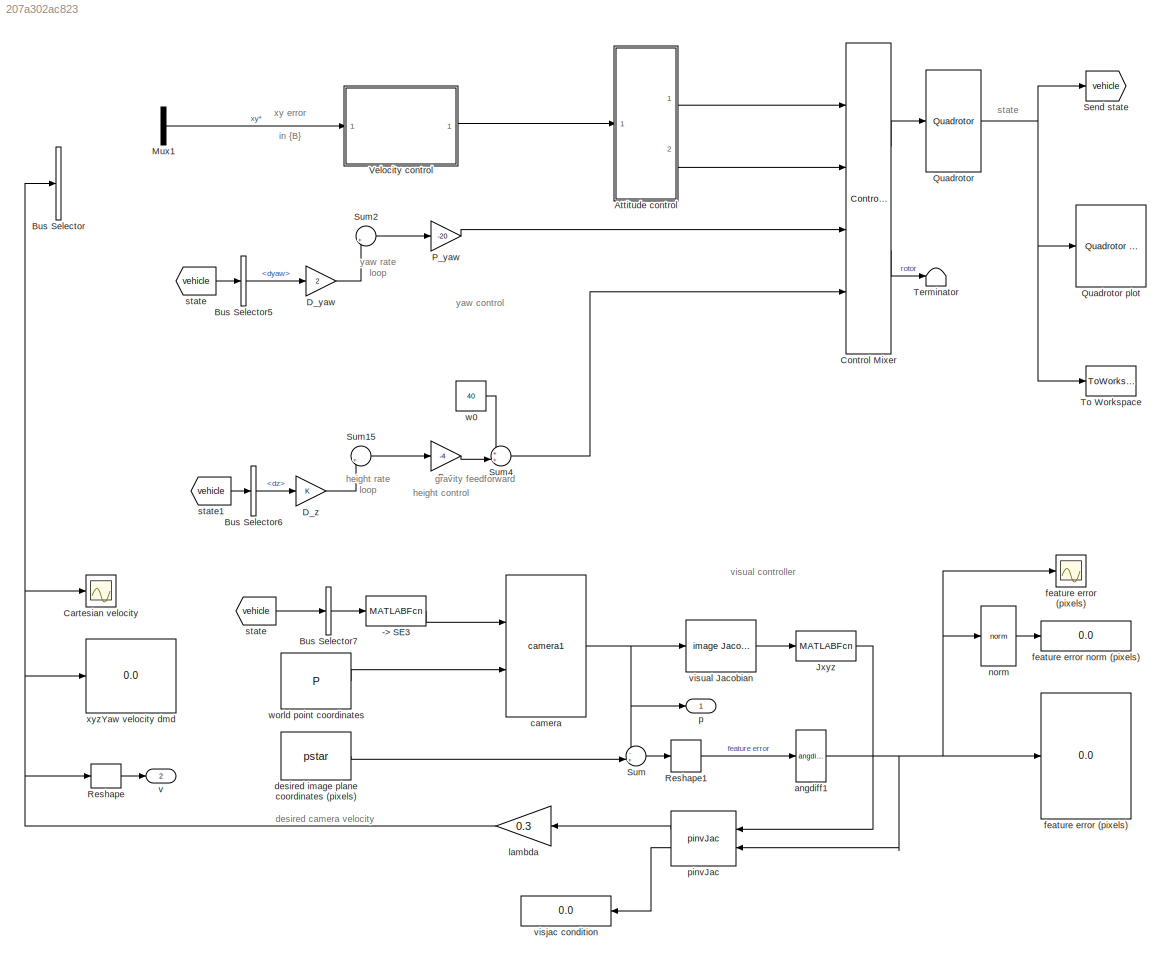
MODEL slx_207a302ac823
KIND model
CONFIG AbsTol = auto
CONFIG EnableMultiTasking = on
CONFIG FixedStep = auto
CONFIG InitFcn = fprintf('----- creating workspace variables: camera, quad, P, pstar\n');\n% create a spherical camera\ncamera = SphericalCamera('name', 'quad-vs');\n\n% create a grid of points on the ground\nP = mkgrid(2, 4);\n\n% set the desired view of these points, defines the final pose\n% of the quad\npstar = camera.project(P, 'Tcam', transl(0, 0, -5)*trotz(pi/2));\n\n% load a dynamic model of the quadrotor\nmdl_quadrot...<+2ch>
CONFIG MaxStep = auto
CONFIG MinStep = auto
CONFIG RelTol = 1e-3
CONFIG SampleTimeConstraint = Unconstrained
CONFIG Solver = ode45
CONFIG SolverName = ode45
CONFIG StartTime = 0.0
CONFIG StopTime = 10.0
BLOCK [MATLABFcn] -> SE3
  MATLABFcn = transl(u(1:3))*rpy2tr(u(4:6)', 'zyx')
  Output1D = off
  OutputDimensions = [4 4]
  Ports = [1, 1]
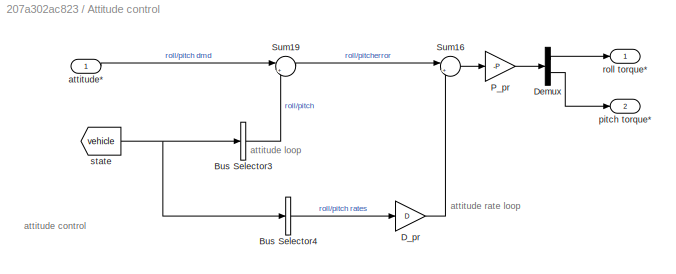
BLOCK [SubSystem] Attitude control
  Ports = [1, 2]
  RequestExecContextInheritance = off
  Variant = off
BLOCK [BusSelector] Attitude control/Bus Selector3
  OutputAsBus = on
  OutputSignals = roll,pitch
  Ports = [1, 1]
BLOCK [BusSelector] Attitude control/Bus Selector4
  OutputAsBus = on
  OutputSignals = droll,dpitch
  Ports = [1, 1]
BLOCK [Gain] Attitude control/D_pr
  Gain = D
  OutDataTypeStr = Inherit: Inherit via internal rule
  ParamDataTypeStr = Inherit: Inherit via internal rule
  SaturateOnIntegerOverflow = off
BLOCK [Demux] Attitude control/Demux
  DisplayOption = bar
  Outputs = 2
  Ports = [1, 2]
BLOCK [Gain] Attitude control/P_pr
  Gain = -P
  OutDataTypeStr = Inherit: Inherit via internal rule
  ParamDataTypeStr = Inherit: Inherit via internal rule
  SaturateOnIntegerOverflow = off
BLOCK [Sum] Attitude control/Sum16
  IconShape = round
  InputSameDT = off
  Inputs = |+-
  OutDataTypeStr = Inherit: Inherit via internal rule
  Ports = [2, 1]
  SaturateOnIntegerOverflow = off
BLOCK [Sum] Attitude control/Sum19
  IconShape = round
  InputSameDT = off
  Inputs = |+-
  OutDataTypeStr = Inherit: Inherit via internal rule
  Ports = [2, 1]
  SaturateOnIntegerOverflow = off
BLOCK [Inport] Attitude control/attitude*
  IconDisplay = Port number
BLOCK [Outport] Attitude control/pitch torque*
  IconDisplay = Port number
  Port = 2
BLOCK [Outport] Attitude control/roll torque*
  IconDisplay = Port number
BLOCK [From] Attitude control/state
  GotoTag = vehicle
  IconDisplay = Tag and signal name
  TagVisibility = global
BLOCK [BusSelector] Bus Selector
  OutputSignals = signal1,signal2
  Ports = [1, 2]
BLOCK [BusSelector] Bus Selector5
  OutputSignals = dyaw
  Ports = [1, 1]
BLOCK [BusSelector] Bus Selector6
  OutputSignals = dz
  Ports = [1, 1]
BLOCK [BusSelector] Bus Selector7
  OutputAsBus = on
  OutputSignals = X,Y,Z,roll,pitch,yaw
  Ports = [1, 1]
BLOCK [Scope] Cartesian velocity
  NumInputPorts = 1
  Ports = [1]
  ScopeSpecificationString = Simulink.scopes.TimeScopeBlockCfg('CurrentConfiguration', extmgr.ConfigurationSet(extmgr.Configuration('Core','General UI',true),extmgr.Configuration('Core','Source UI',true),extmgr.Configuration('Sources','WiredSimulink',true,'DataLoggingVariableName','ScopeData1'),extmgr.Configuration('Visuals','Time Domain',true,'SerializedDisplays',{struct('MinYLimReal','-1.05911','MaxYLimReal','0.64128','YLab...<+1436ch>
BLOCK [Reference] Control Mixer  REF=roblocks/Vehicles/Control Mixer 4  (lib defined in mdl_2a292b13c81b, mdl_69400f8cfe22, +12 more)
  Ports = [4, 2]
  SourceBlock = roblocks/Vehicles/Control Mixer 4
BLOCK [Gain] D_yaw
  Gain = 2
  OutDataTypeStr = Inherit: Inherit via internal rule
  ParamDataTypeStr = Inherit: Inherit via internal rule
  SaturateOnIntegerOverflow = off
BLOCK [Gain] D_z
  OutDataTypeStr = Inherit: Inherit via internal rule
  ParamDataTypeStr = Inherit: Inherit via internal rule
  SaturateOnIntegerOverflow = off
BLOCK [MATLABFcn] Jxyz
  MATLABFcn = u(:,[1 2 3 6])
  Output1D = off
  Ports = [1, 1]
BLOCK [Mux] Mux1
  DisplayOption = bar
  Inputs = 2
  Ports = [2, 1]
BLOCK [Gain] P_yaw
  Gain = -20
  OutDataTypeStr = Inherit: Inherit via internal rule
  ParamDataTypeStr = Inherit: Inherit via internal rule
  SaturateOnIntegerOverflow = off
BLOCK [Gain] P_z
  Gain = -4
  OutDataTypeStr = Inherit: Inherit via internal rule
  ParamDataTypeStr = Inherit: Inherit via internal rule
  SaturateOnIntegerOverflow = off
BLOCK [Reference] Quadrotor  REF=roblocks/Vehicles/Quadrotor  (lib defined in mdl_2a292b13c81b, mdl_69400f8cfe22, +12 more)
  Ports = [1, 1]
  SourceBlock = roblocks/Vehicles/Quadrotor
BLOCK [Reference] Quadrotor plot  REF=roblocks/Vehicles/Quadrotor plot  (lib defined in mdl_2a292b13c81b, mdl_69400f8cfe22, +12 more)
  Ports = [1]
  SourceBlock = roblocks/Vehicles/Quadrotor plot
BLOCK [Reshape] Reshape
  OutputDimensions = 6
  Ports = [1, 1]
BLOCK [Reshape] Reshape1
  OutputDimensions = 6
  Ports = [1, 1]
BLOCK [Goto] Send state
  GotoTag = vehicle
  IconDisplay = Tag and signal name
  TagVisibility = global
BLOCK [Sum] Sum
  IconShape = round
  Inputs = -+|
  Ports = [2, 1]
BLOCK [Sum] Sum15
  IconShape = round
  InputSameDT = off
  Inputs = |+-
  OutDataTypeStr = Inherit: Inherit via internal rule
  Ports = [2, 1]
  SaturateOnIntegerOverflow = off
BLOCK [Sum] Sum2
  IconShape = round
  InputSameDT = off
  Inputs = |+-
  OutDataTypeStr = Inherit: Inherit via internal rule
  Ports = [2, 1]
  SaturateOnIntegerOverflow = off
BLOCK [Sum] Sum4
  IconShape = round
  InputSameDT = off
  Inputs = ++|
  OutDataTypeStr = Inherit: Inherit via internal rule
  Ports = [2, 1]
  SaturateOnIntegerOverflow = off
BLOCK [Terminator] Terminator
BLOCK [ToWorkspace] To Workspace
  MaxDataPoints = inf
  Ports = [1]
  SampleTime = -1
  VariableName = result
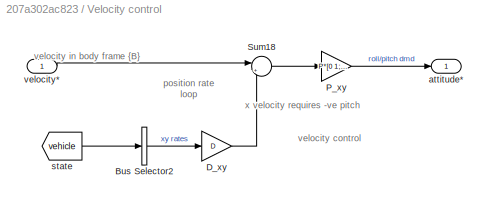
BLOCK [SubSystem] Velocity control
  Ports = [1, 1]
  RequestExecContextInheritance = off
  Variant = off
BLOCK [BusSelector] Velocity control/Bus Selector2
  OutputAsBus = on
  OutputSignals = dx,dy
  Ports = [1, 1]
BLOCK [Gain] Velocity control/D_xy
  Gain = D
  OutDataTypeStr = Inherit: Inherit via internal rule
  ParamDataTypeStr = Inherit: Inherit via internal rule
  SaturateOnIntegerOverflow = off
BLOCK [Gain] Velocity control/P_xy
  Gain = P*[0 1; -1 0]
  Multiplication = Matrix(K*u)
  OutDataTypeStr = Inherit: Inherit via internal rule
  ParamDataTypeStr = Inherit: Inherit via internal rule
  SaturateOnIntegerOverflow = off
BLOCK [Sum] Velocity control/Sum18
  IconShape = round
  InputSameDT = off
  Inputs = |+-
  OutDataTypeStr = Inherit: Inherit via internal rule
  Ports = [2, 1]
  SaturateOnIntegerOverflow = off
BLOCK [Outport] Velocity control/attitude*
  IconDisplay = Port number
BLOCK [From] Velocity control/state
  GotoTag = vehicle
  IconDisplay = Tag and signal name
  TagVisibility = global
BLOCK [Inport] Velocity control/velocity*
  IconDisplay = Port number
BLOCK [Reference] angdiff1  REF=roblocks/Toolbox/angdiff1  (lib defined in mdl_2a292b13c81b, mdl_69400f8cfe22, +12 more)
  Ports = [1, 1]
  SourceBlock = roblocks/Toolbox/angdiff1
BLOCK [Reference] camera  REF=roblocks/Vision/camera1  (lib defined in mdl_2a292b13c81b, mdl_69400f8cfe22, +12 more)
  Ports = [2, 1]
  SourceBlock = roblocks/Vision/camera1
BLOCK [Constant] desired image plane coordinates (pixels)
  Value = pstar
  VectorParams1D = off
BLOCK [Display] feature error (pixels)
  Decimation = 1
  Format = bank
  Ports = [1]
BLOCK [Scope] feature error (pixels) 
  NumInputPorts = 1
  Ports = [1]
  ScopeSpecificationString = Simulink.scopes.TimeScopeBlockCfg('CurrentConfiguration', extmgr.ConfigurationSet(extmgr.Configuration('Core','General UI',true),extmgr.Configuration('Core','Source UI',true),extmgr.Configuration('Sources','WiredSimulink',true),extmgr.Configuration('Visuals','Time Domain',true,'SerializedDisplays',{struct('MinYLimReal','-1.65646','MaxYLimReal','-0.79987','YLabelReal','','MinYLimMag','0.00000','Max...<+1400ch>
BLOCK [Display] feature error norm (pixels)
  Decimation = 1
  Ports = [1]
BLOCK [Gain] lambda
  Gain = 0.3
BLOCK [Reference] norm  REF=roblocks/Toolbox/norm  (lib defined in mdl_2a292b13c81b, mdl_69400f8cfe22, +12 more)
  Ports = [1, 1]
  SourceBlock = roblocks/Toolbox/norm
BLOCK [Outport] p
  IconDisplay = Port number
BLOCK [Reference] pinvJac  REF=roblocks/Toolbox/pinvJac  (lib defined in mdl_2a292b13c81b, mdl_69400f8cfe22, +12 more)
  Ports = [2, 2]
  SourceBlock = roblocks/Toolbox/pinvJac
BLOCK [From] state
  GotoTag = vehicle
  IconDisplay = Tag and signal name
  TagVisibility = global
BLOCK [From] state 
  GotoTag = vehicle
  IconDisplay = Tag and signal name
  TagVisibility = global
BLOCK [From] state1
  GotoTag = vehicle
  IconDisplay = Tag and signal name
  TagVisibility = global
BLOCK [Outport] v
  IconDisplay = Port number
  Port = 2
BLOCK [Display] visjac condition
  Decimation = 1
  Ports = [1]
BLOCK [Reference] visual Jacobian  REF=roblocks/Vision/image  (lib defined in mdl_2a292b13c81b, mdl_69400f8cfe22, +12 more)
Jacobian
  Ports = [1, 1]
  SourceBlock = roblocks/Vision/image\nJacobian
BLOCK [Constant] w0
  SampleTime = 0
  Value = 40
BLOCK [Constant] world point coordinates
  Value = P
  VectorParams1D = off
BLOCK [Display] xyzYaw velocity dmd
  Decimation = 1
  Format = bank
  Ports = [1]
ANNOTATION (root): height control
ANNOTATION (root): visual controller
ANNOTATION (root): yaw control
ANNOTATION (root): desired camera velocity
ANNOTATION (root): gravity feedforward
ANNOTATION (root): height rate loop
ANNOTATION (root): state
ANNOTATION (root): xy error in {B}
ANNOTATION (root): yaw rate loop
ANNOTATION Attitude control: attitude rate loop
ANNOTATION Attitude control: attitude loop
ANNOTATION Attitude control: attitude control
ANNOTATION Velocity control: velocity control
ANNOTATION Velocity control: position rate loop
ANNOTATION Velocity control: velocity in body frame {B}
ANNOTATION Velocity control: x velocity requires -ve pitch
LINE -> SE3:1 -> camera:1
LINE Attitude control/Bus Selector3:1 -> Attitude control/Sum19:2
LINE Attitude control/Bus Selector4:1 -> Attitude control/D_pr:1
LINE Attitude control/D_pr:1 -> Attitude control/Sum16:2
LINE Attitude control/Demux:1 -> Attitude control/roll torque*:1
LINE Attitude control/Demux:2 -> Attitude control/pitch torque*:1
LINE Attitude control/P_pr:1 -> Attitude control/Demux:1
LINE Attitude control/Sum16:1 -> Attitude control/P_pr:1
LINE Attitude control/Sum19:1 -> Attitude control/Sum16:1
LINE Attitude control/attitude*:1 -> Attitude control/Sum19:1
NET Attitude control/state:1 -> Attitude control/Bus Selector3:1, Attitude control/Bus Selector4:1
LINE Attitude control:1 -> Control Mixer:1
LINE Attitude control:2 -> Control Mixer:2
LINE Bus Selector5:1 -> D_yaw:1
LINE Bus Selector6:1 -> D_z:1
LINE Bus Selector7:1 -> -> SE3:1
LINE Control Mixer:1 -> Quadrotor:1
LINE Control Mixer:2 -> Terminator:1
LINE D_yaw:1 -> Sum2:2
LINE D_z:1 -> Sum15:2
LINE Jxyz:1 -> pinvJac:1
LINE Mux1:1 -> Velocity control:1
LINE P_yaw:1 -> Control Mixer:3
LINE P_z:1 -> Sum4:2
NET Quadrotor:1 -> Quadrotor plot:1, Send state:1, To Workspace:1
LINE Reshape1:1 -> angdiff1:1
LINE Reshape:1 -> v:1
LINE Sum15:1 -> P_z:1
LINE Sum2:1 -> P_yaw:1
LINE Sum4:1 -> Control Mixer:4
LINE Sum:1 -> Reshape1:1
LINE Velocity control/Bus Selector2:1 -> Velocity control/D_xy:1
LINE Velocity control/D_xy:1 -> Velocity control/Sum18:2
LINE Velocity control/P_xy:1 -> Velocity control/attitude*:1
LINE Velocity control/Sum18:1 -> Velocity control/P_xy:1
LINE Velocity control/state:1 -> Velocity control/Bus Selector2:1
LINE Velocity control/velocity*:1 -> Velocity control/Sum18:1
LINE Velocity control:1 -> Attitude control:1
NET angdiff1:1 -> feature error (pixels) :1, feature error (pixels):1, norm:1, pinvJac:2
NET camera:1 -> Sum:1, p:1, visual Jacobian:1
LINE desired image plane coordinates (pixels):1 -> Sum:2
NET lambda:1 -> Bus Selector:1, Cartesian velocity:1, Reshape:1, xyzYaw velocity dmd:1
LINE norm:1 -> feature error norm (pixels):1
LINE pinvJac:1 -> lambda:1
LINE pinvJac:2 -> visjac condition:1
LINE state :1 -> Bus Selector7:1
LINE state1:1 -> Bus Selector6:1
LINE state:1 -> Bus Selector5:1
LINE visual Jacobian:1 -> Jxyz:1
LINE w0:1 -> Sum4:1
LINE world point coordinates:1 -> camera:2
note: NET lines group one-source signal fan-out (src -> all destinations, sorted); 1:1 wires keep LINE
